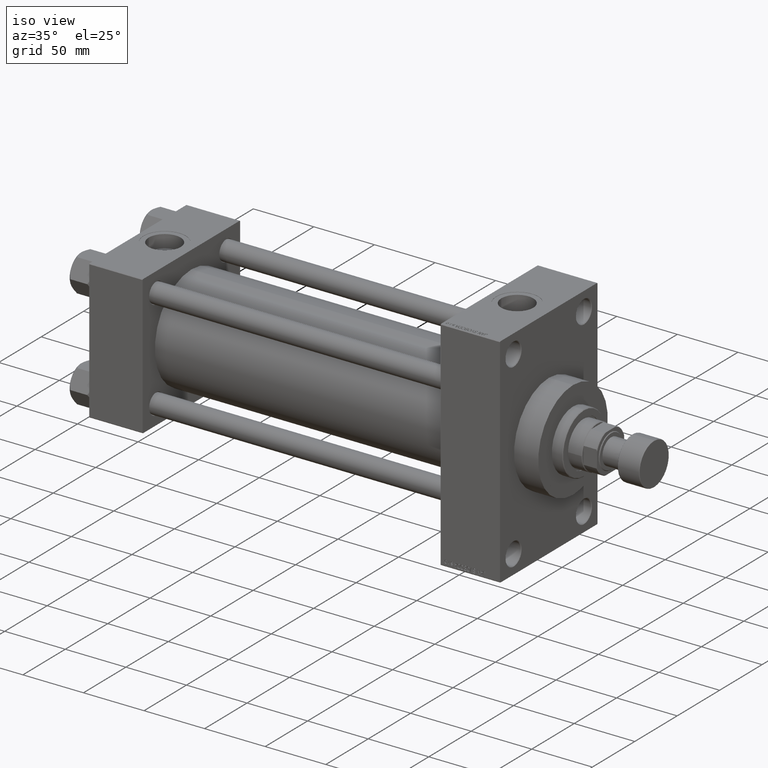
[diagram: clean part render]
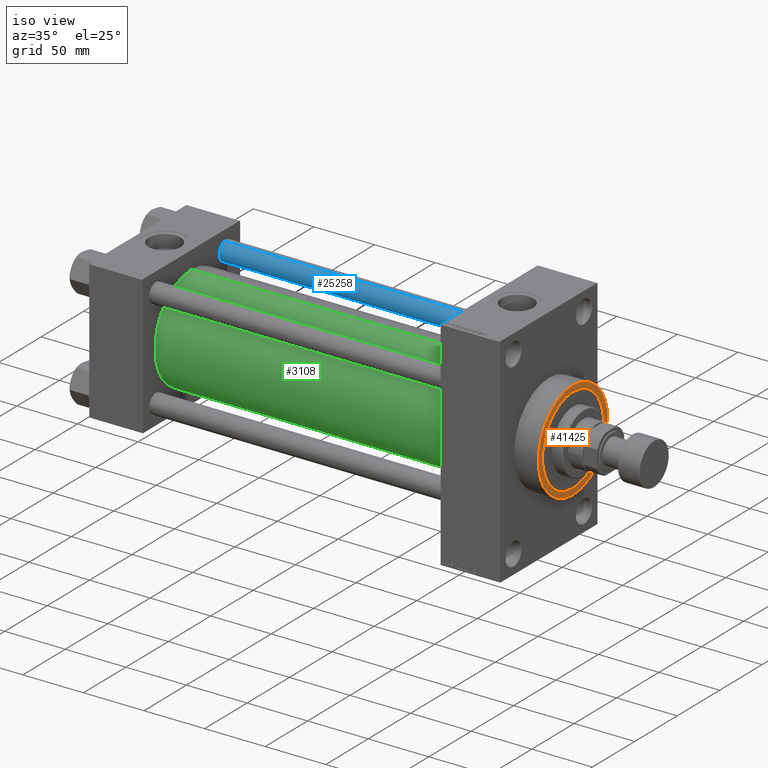
[diagram: same view with three faces highlighted in distinct colors, each labeled with its STEP entity id]
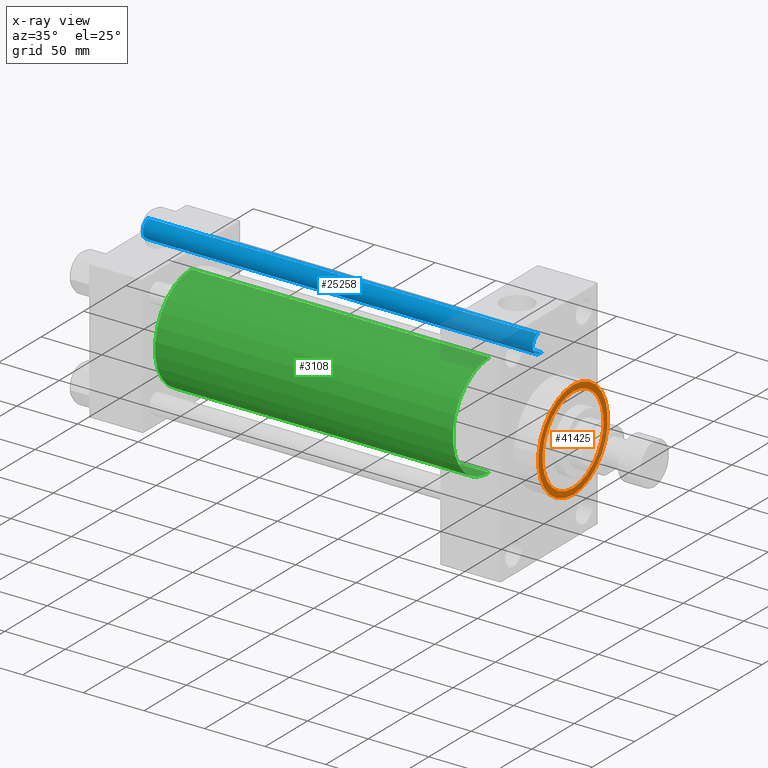
[diagram: x-ray of the same camera — body ghosted, the three highlighted faces saturated]
A machine part, iso view with three faces highlighted in distinct colors.
The next image is the same camera in x-ray (body ghosted, the three faces saturated) — at least one of them is partly hidden behind the body in this view.
Their STEP definitions:

[orange] entity #41425 — the highlighted planar face has unit normal (1, 0, 0).
#1503 = DIRECTION ( 'NONE',  ( 1.000000000000000000, 0.000000000000000000, 0.000000000000000000 ) ) ;
#2010 = AXIS2_PLACEMENT_3D ( 'NONE', #21173, #43573, #10701 ) ;
#2181 = CARTESIAN_POINT ( 'NONE',  ( 359.0000000000000000, 4.408728476930470856E-15, 36.00000000000000000 ) ) ;
#2238 = CIRCLE ( 'NONE', #43457, 41.00000000000000000 ) ;
#2701 = CARTESIAN_POINT ( 'NONE',  ( 359.0000000000000000, 5.021051876504148963E-15, -41.00000000000000000 ) ) ;
#2870 = DIRECTION ( 'NONE',  ( 1.000000000000000000, 0.000000000000000000, 0.000000000000000000 ) ) ;
#3623 = CARTESIAN_POINT ( 'NONE',  ( 359.0000000000000000, 0.000000000000000000, 41.00000000000000000 ) ) ;
#3918 = ORIENTED_EDGE ( 'NONE', *, *, #33282, .F. ) ;
#8908 = DIRECTION ( 'NONE',  ( 1.000000000000000000, 0.000000000000000000, 0.000000000000000000 ) ) ;
#9907 = VERTEX_POINT ( 'NONE', #3623 ) ;
#10701 = DIRECTION ( 'NONE',  ( 0.000000000000000000, 0.000000000000000000, -1.000000000000000000 ) ) ;
#11092 = AXIS2_PLACEMENT_3D ( 'NONE', #42646, #1503, #34604 ) ;
#11591 = CARTESIAN_POINT ( 'NONE',  ( 359.0000000000000000, 0.000000000000000000, 0.000000000000000000 ) ) ;
#14589 = ORIENTED_EDGE ( 'NONE', *, *, #20847, .T. ) ;
#14935 = CARTESIAN_POINT ( 'NONE',  ( 359.0000000000000000, 0.000000000000000000, -36.00000000000000000 ) ) ;
#16081 = VERTEX_POINT ( 'NONE', #14935 ) ;
#19633 = VERTEX_POINT ( 'NONE', #2181 ) ;
#20847 = EDGE_CURVE ( 'NONE', #45068, #9907, #2238, .T. ) ;
#21173 = CARTESIAN_POINT ( 'NONE',  ( 359.0000000000000000, 0.000000000000000000, 0.000000000000000000 ) ) ;
#27566 = EDGE_CURVE ( 'NONE', #19633, #16081, #32769, .T. ) ;
#28091 = AXIS2_PLACEMENT_3D ( 'NONE', #35897, #8908, #35171 ) ;
#28256 = EDGE_LOOP ( 'NONE', ( #47725, #14589 ) ) ;
#28721 = FACE_BOUND ( 'NONE', #30049, .T. ) ;
#29377 = DIRECTION ( 'NONE',  ( 1.000000000000000000, 0.000000000000000000, 0.000000000000000000 ) ) ;
#29617 = DIRECTION ( 'NONE',  ( 0.000000000000000000, 0.000000000000000000, -1.000000000000000000 ) ) ;
#30049 = EDGE_LOOP ( 'NONE', ( #3918, #46504 ) ) ;
#32093 = CARTESIAN_POINT ( 'NONE',  ( 359.0000000000000000, 0.000000000000000000, 0.000000000000000000 ) ) ;
#32769 = CIRCLE ( 'NONE', #28091, 36.00000000000000000 ) ;
#33282 = EDGE_CURVE ( 'NONE', #16081, #19633, #41388, .T. ) ;
#34604 = DIRECTION ( 'NONE',  ( 0.000000000000000000, 0.000000000000000000, -1.000000000000000000 ) ) ;
#35171 = DIRECTION ( 'NONE',  ( 0.000000000000000000, 0.000000000000000000, -1.000000000000000000 ) ) ;
#35897 = CARTESIAN_POINT ( 'NONE',  ( 359.0000000000000000, 0.000000000000000000, 0.000000000000000000 ) ) ;
#36011 = FACE_OUTER_BOUND ( 'NONE', #28256, .T. ) ;
#36859 = CIRCLE ( 'NONE', #42318, 41.00000000000000000 ) ;
#37521 = EDGE_CURVE ( 'NONE', #9907, #45068, #36859, .T. ) ;
#40160 = PLANE ( 'NONE',  #2010 ) ;
#41388 = CIRCLE ( 'NONE', #11092, 36.00000000000000000 ) ;
#41425 = ADVANCED_FACE ( 'NONE', ( #28721, #36011 ), #40160, .T. ) ;
#42318 = AXIS2_PLACEMENT_3D ( 'NONE', #32093, #2870, #46933 ) ;
#42646 = CARTESIAN_POINT ( 'NONE',  ( 359.0000000000000000, 0.000000000000000000, 0.000000000000000000 ) ) ;
#43457 = AXIS2_PLACEMENT_3D ( 'NONE', #11591, #29377, #29617 ) ;
#43573 = DIRECTION ( 'NONE',  ( 1.000000000000000000, 0.000000000000000000, 0.000000000000000000 ) ) ;
#45068 = VERTEX_POINT ( 'NONE', #2701 ) ;
#46504 = ORIENTED_EDGE ( 'NONE', *, *, #27566, .F. ) ;
#46933 = DIRECTION ( 'NONE',  ( 0.000000000000000000, 0.000000000000000000, -1.000000000000000000 ) ) ;
#47725 = ORIENTED_EDGE ( 'NONE', *, *, #37521, .T. ) ;

[blue] entity #25258 — the highlighted cylindrical surface (edge-blend (fillet) strip) has radius 8 mm, axis along (-1, -0, 0).
#464 = LINE ( 'NONE', #19672, #5325 ) ;
#1719 = VECTOR ( 'NONE', #35213, 1000.000000000000000 ) ;
#2022 = DIRECTION ( 'NONE',  ( 1.000000000000000000, 0.000000000000000000, 0.000000000000000000 ) ) ;
#3233 = EDGE_CURVE ( 'NONE', #17213, #13381, #40202, .T. ) ;
#5054 = CARTESIAN_POINT ( 'NONE',  ( -8.000000000000000000, 0.000000000000000000, 323.0000000000000000 ) ) ;
#5325 = VECTOR ( 'NONE', #37691, 1000.000000000000000 ) ;
#5392 = ORIENTED_EDGE ( 'NONE', *, *, #14869, .T. ) ;
#5628 = ORIENTED_EDGE ( 'NONE', *, *, #3233, .T. ) ;
#6902 = DIRECTION ( 'NONE',  ( 0.000000000000000000, 0.000000000000000000, -1.000000000000000000 ) ) ;
#9835 = CARTESIAN_POINT ( 'NONE',  ( 0.000000000000000000, 0.000000000000000000, 322.5000000000000000 ) ) ;
#11064 = AXIS2_PLACEMENT_3D ( 'NONE', #27833, #24664, #2022 ) ;
#12348 = LINE ( 'NONE', #5054, #1719 ) ;
#13381 = VERTEX_POINT ( 'NONE', #30963 ) ;
#14869 = EDGE_CURVE ( 'NONE', #13381, #37020, #12348, .T. ) ;
#15856 = ORIENTED_EDGE ( 'NONE', *, *, #29766, .T. ) ;
#17213 = VERTEX_POINT ( 'NONE', #46508 ) ;
#17728 = DIRECTION ( 'NONE',  ( -0.000000000000000000, -0.000000000000000000, -1.000000000000000000 ) ) ;
#18803 = DIRECTION ( 'NONE',  ( 1.000000000000000000, 0.000000000000000000, 0.000000000000000000 ) ) ;
#19672 = CARTESIAN_POINT ( 'NONE',  ( 8.000000000000000000, 9.797174393178825657E-16, 323.0000000000000000 ) ) ;
#21207 = EDGE_CURVE ( 'NONE', #17213, #38188, #464, .T. ) ;
#22111 = DIRECTION ( 'NONE',  ( -1.000000000000000000, 0.000000000000000000, 0.000000000000000000 ) ) ;
#24664 = DIRECTION ( 'NONE',  ( -0.000000000000000000, -0.000000000000000000, 1.000000000000000000 ) ) ;
#24674 = AXIS2_PLACEMENT_3D ( 'NONE', #9835, #6902, #18803 ) ;
#25258 = ADVANCED_FACE ( 'NONE', ( #35496 ), #39902, .T. ) ;
#26764 = CARTESIAN_POINT ( 'NONE',  ( 8.000000000000000000, 9.797174393178825657E-16, 0.5000000000000004441 ) ) ;
#27833 = CARTESIAN_POINT ( 'NONE',  ( 0.000000000000000000, 0.000000000000000000, 0.5000000000000004441 ) ) ;
#28159 = CIRCLE ( 'NONE', #11064, 8.000000000000000000 ) ;
#28699 = CARTESIAN_POINT ( 'NONE',  ( 0.000000000000000000, 0.000000000000000000, 323.0000000000000000 ) ) ;
#29766 = EDGE_CURVE ( 'NONE', #37020, #38188, #28159, .T. ) ;
#30963 = CARTESIAN_POINT ( 'NONE',  ( -8.000000000000000000, 0.000000000000000000, 322.5000000000000000 ) ) ;
#35213 = DIRECTION ( 'NONE',  ( -0.000000000000000000, -0.000000000000000000, -1.000000000000000000 ) ) ;
#35496 = FACE_OUTER_BOUND ( 'NONE', #44131, .T. ) ;
#36544 = AXIS2_PLACEMENT_3D ( 'NONE', #28699, #17728, #22111 ) ;
#37020 = VERTEX_POINT ( 'NONE', #40174 ) ;
#37691 = DIRECTION ( 'NONE',  ( -0.000000000000000000, -0.000000000000000000, -1.000000000000000000 ) ) ;
#38188 = VERTEX_POINT ( 'NONE', #26764 ) ;
#39902 = CYLINDRICAL_SURFACE ( 'NONE', #36544, 8.000000000000000000 ) ;
#40174 = CARTESIAN_POINT ( 'NONE',  ( -8.000000000000000000, 0.000000000000000000, 0.5000000000000004441 ) ) ;
#40202 = CIRCLE ( 'NONE', #24674, 8.000000000000000000 ) ;
#44131 = EDGE_LOOP ( 'NONE', ( #44896, #5628, #5392, #15856 ) ) ;
#44896 = ORIENTED_EDGE ( 'NONE', *, *, #21207, .F. ) ;
#46508 = CARTESIAN_POINT ( 'NONE',  ( 8.000000000000000000, 9.797174393178825657E-16, 322.5000000000000000 ) ) ;

[green] entity #3108 — the highlighted cylindrical surface (partial cylindrical patch) has radius 43 mm, axis along (-1, -0, -0).
#1087 = CYLINDRICAL_SURFACE ( 'NONE', #44198, 43.00000000000000000 ) ;
#3108 = ADVANCED_FACE ( 'NONE', ( #38079 ), #1087, .T. ) ;
#3408 = CIRCLE ( 'NONE', #8869, 43.00000000000000000 ) ;
#3504 = DIRECTION ( 'NONE',  ( 1.000000000000000000, -0.000000000000000000, 0.000000000000000000 ) ) ;
#3697 = CARTESIAN_POINT ( 'NONE',  ( 290.0000000000000000, -2.602085213965210642E-15, 43.00000000000000000 ) ) ;
#3866 = AXIS2_PLACEMENT_3D ( 'NONE', #22483, #3504, #25904 ) ;
#3899 = EDGE_CURVE ( 'NONE', #43879, #19838, #5825, .T. ) ;
#4810 = CARTESIAN_POINT ( 'NONE',  ( 290.0000000000000000, 2.663896022368408223E-15, -43.00000000000000000 ) ) ;
#5825 = LINE ( 'NONE', #39896, #13777 ) ;
#6291 = VERTEX_POINT ( 'NONE', #12730 ) ;
#8027 = DIRECTION ( 'NONE',  ( 0.000000000000000000, 0.000000000000000000, -1.000000000000000000 ) ) ;
#8869 = AXIS2_PLACEMENT_3D ( 'NONE', #42320, #42081, #8027 ) ;
#8918 = ORIENTED_EDGE ( 'NONE', *, *, #23519, .T. ) ;
#10288 = DIRECTION ( 'NONE',  ( -1.000000000000000000, -0.000000000000000000, -0.000000000000000000 ) ) ;
#12730 = CARTESIAN_POINT ( 'NONE',  ( 43.99999999999998579, -2.602085213965210642E-15, 43.00000000000000000 ) ) ;
#13182 = ORIENTED_EDGE ( 'NONE', *, *, #3899, .F. ) ;
#13777 = VECTOR ( 'NONE', #35738, 1000.000000000000000 ) ;
#15923 = CARTESIAN_POINT ( 'NONE',  ( 290.0000000000000000, -2.602085213965210642E-15, 0.000000000000000000 ) ) ;
#19838 = VERTEX_POINT ( 'NONE', #37198 ) ;
#21239 = LINE ( 'NONE', #24894, #33601 ) ;
#22483 = CARTESIAN_POINT ( 'NONE',  ( 43.99999999999998579, -2.602085213965210642E-15, 0.000000000000000000 ) ) ;
#23519 = EDGE_CURVE ( 'NONE', #6291, #19838, #42720, .T. ) ;
#23962 = DIRECTION ( 'NONE',  ( 0.000000000000000000, 0.000000000000000000, 1.000000000000000000 ) ) ;
#24894 = CARTESIAN_POINT ( 'NONE',  ( 290.0000000000000000, -2.602085213965210642E-15, 43.00000000000000000 ) ) ;
#25904 = DIRECTION ( 'NONE',  ( 0.000000000000000000, 0.000000000000000000, 1.000000000000000000 ) ) ;
#28951 = EDGE_CURVE ( 'NONE', #47506, #6291, #21239, .T. ) ;
#33601 = VECTOR ( 'NONE', #10288, 1000.000000000000000 ) ;
#35738 = DIRECTION ( 'NONE',  ( -1.000000000000000000, -0.000000000000000000, -0.000000000000000000 ) ) ;
#37198 = CARTESIAN_POINT ( 'NONE',  ( 43.99999999999998579, 2.663896022368408223E-15, -43.00000000000000000 ) ) ;
#37290 = EDGE_CURVE ( 'NONE', #47506, #43879, #3408, .T. ) ;
#37805 = ORIENTED_EDGE ( 'NONE', *, *, #37290, .F. ) ;
#38079 = FACE_OUTER_BOUND ( 'NONE', #47868, .T. ) ;
#39896 = CARTESIAN_POINT ( 'NONE',  ( 290.0000000000000000, 2.663896022368408223E-15, -43.00000000000000000 ) ) ;
#42081 = DIRECTION ( 'NONE',  ( 1.000000000000000000, 0.000000000000000000, 0.000000000000000000 ) ) ;
#42320 = CARTESIAN_POINT ( 'NONE',  ( 290.0000000000000000, -2.602085213965210642E-15, 0.000000000000000000 ) ) ;
#42457 = DIRECTION ( 'NONE',  ( -1.000000000000000000, -0.000000000000000000, -0.000000000000000000 ) ) ;
#42720 = CIRCLE ( 'NONE', #3866, 43.00000000000000000 ) ;
#43879 = VERTEX_POINT ( 'NONE', #4810 ) ;
#44198 = AXIS2_PLACEMENT_3D ( 'NONE', #15923, #42457, #23962 ) ;
#47506 = VERTEX_POINT ( 'NONE', #3697 ) ;
#47735 = ORIENTED_EDGE ( 'NONE', *, *, #28951, .T. ) ;
#47868 = EDGE_LOOP ( 'NONE', ( #13182, #37805, #47735, #8918 ) ) ;